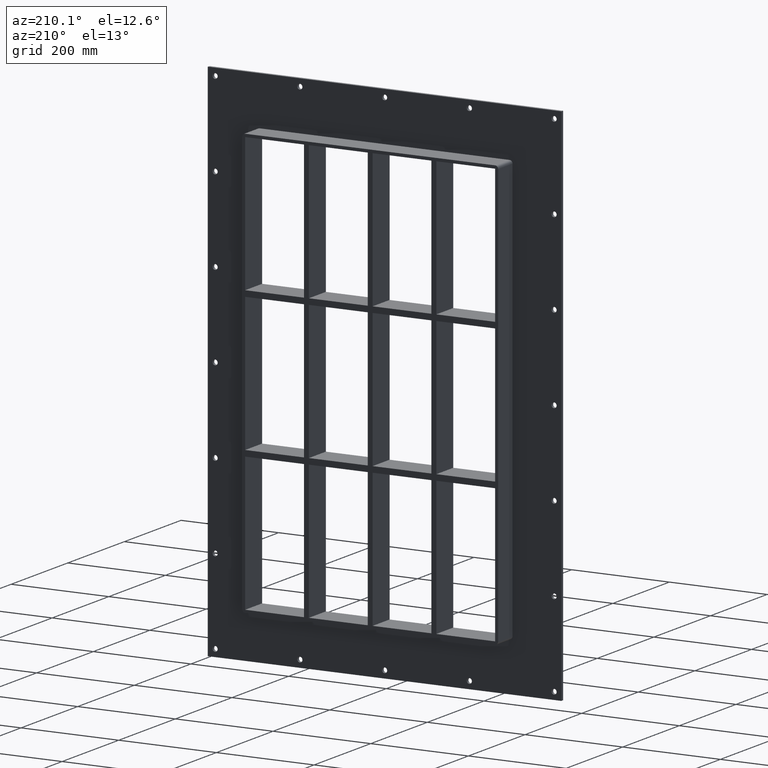
[diagram: clean part render]
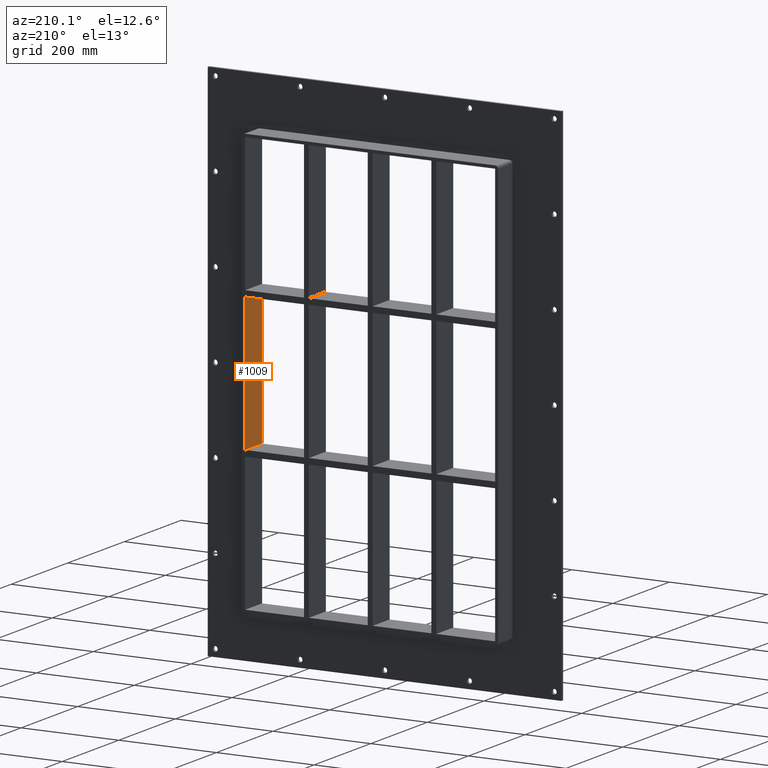
[diagram: same view with one face highlighted and labeled with its STEP entity id]
A machine part, auxiliary view. The second image highlights one B-rep face of the part: STEP entity #1009.
In plain terms, the highlighted planar face has unit normal (1, 0, 0).
Its self-contained STEP definition (entity closure, byte-faithful):
#723=CARTESIAN_POINT('',(256.00000000000358,57.0,138.99999999998906));
#724=VERTEX_POINT('',#723);
#731=CARTESIAN_POINT('',(256.00000000000364,-3.0,138.99999999998906));
#732=VERTEX_POINT('',#731);
#733=CARTESIAN_POINT('',(256.00000000000006,-3.0,138.99999999998903));
#734=DIRECTION('',(0.0,1.0,0.0));
#735=VECTOR('',#734,60.000000000000007);
#736=LINE('',#733,#735);
#737=EDGE_CURVE('',#732,#724,#736,.T.);
#979=CARTESIAN_POINT('',(256.00000000000006,0.0,429.00000000000006));
#980=DIRECTION('',(1.0,0.0,0.0));
#981=DIRECTION('',(0.0,0.0,-1.0));
#982=AXIS2_PLACEMENT_3D('',#979,#980,#981);
#983=PLANE('',#982);
#984=ORIENTED_EDGE('',*,*,#737,.T.);
#985=CARTESIAN_POINT('',(255.9999999999992,57.0,-139.00000000000091));
#986=VERTEX_POINT('',#985);
#987=CARTESIAN_POINT('',(256.00000000000006,57.0,-139.00000000000091));
#988=DIRECTION('',(0.0,0.0,1.0));
#989=VECTOR('',#988,277.99999999999);
#990=LINE('',#987,#989);
#991=EDGE_CURVE('',#986,#724,#990,.T.);
#992=ORIENTED_EDGE('',*,*,#991,.F.);
#993=CARTESIAN_POINT('',(255.9999999999992,-3.0,-139.00000000000091));
#994=VERTEX_POINT('',#993);
#995=CARTESIAN_POINT('',(256.00000000000006,57.000000000000007,-139.00000000000091));
#996=DIRECTION('',(0.0,-1.0,0.0));
#997=VECTOR('',#996,60.000000000000007);
#998=LINE('',#995,#997);
#999=EDGE_CURVE('',#986,#994,#998,.T.);
#1000=ORIENTED_EDGE('',*,*,#999,.T.);
#1001=CARTESIAN_POINT('',(256.00000000000006,-3.0,138.99999999998909));
#1002=DIRECTION('',(0.0,0.0,-1.0));
#1003=VECTOR('',#1002,277.99999999999);
#1004=LINE('',#1001,#1003);
#1005=EDGE_CURVE('',#732,#994,#1004,.T.);
#1006=ORIENTED_EDGE('',*,*,#1005,.F.);
#1007=EDGE_LOOP('',(#984,#992,#1000,#1006));
#1008=FACE_OUTER_BOUND('',#1007,.T.);
#1009=ADVANCED_FACE('',(#1008),#983,.F.);